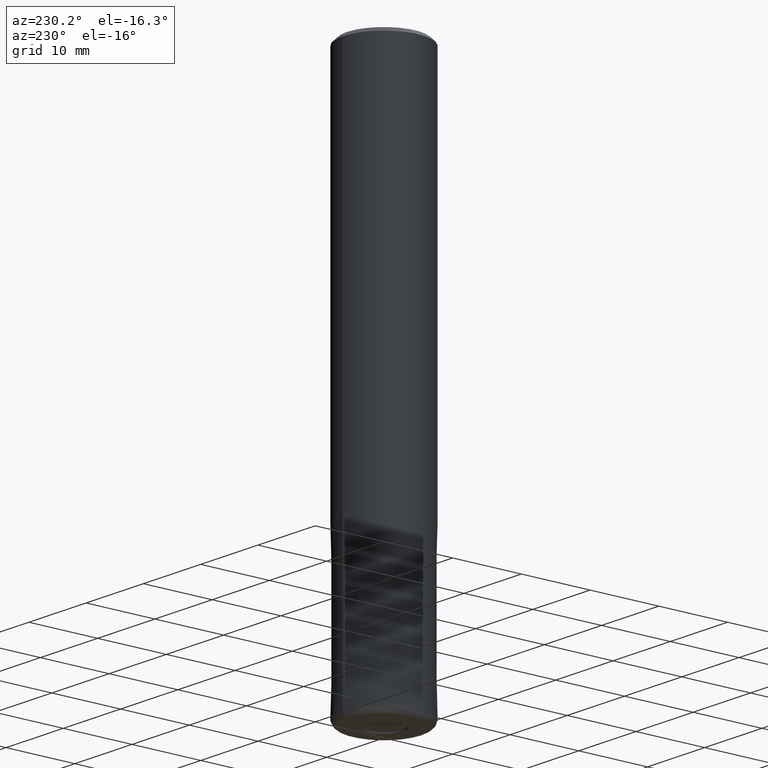
[diagram: clean part render]
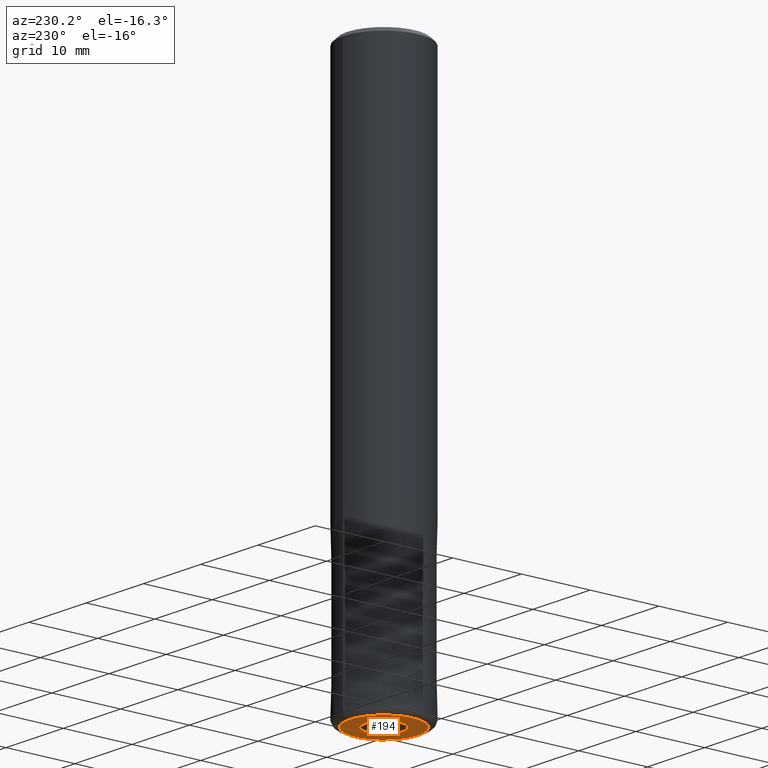
[diagram: same view with one face highlighted and labeled with its STEP entity id]
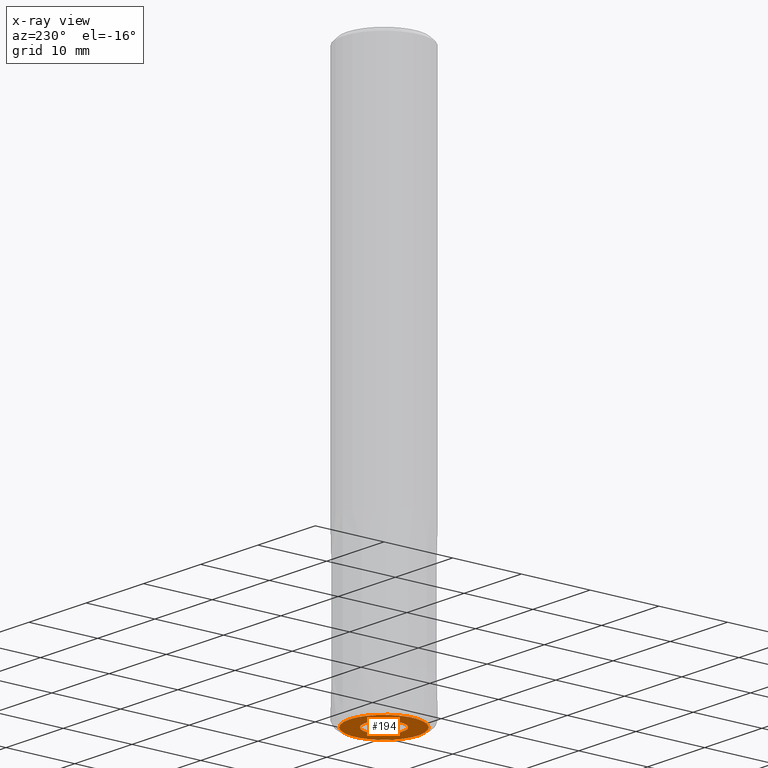
[diagram: x-ray of the same camera — body ghosted, the highlighted face saturated]
A machine part, auxiliary view. The second image highlights one B-rep face of the part: STEP entity #194.
The next image is the same camera in x-ray: the body ghosted, the highlighted face saturated — about 0% of this face is hidden behind the body in this view.
In plain terms, the highlighted planar face has unit normal (0, 0, -1).
Its self-contained STEP definition (entity closure, byte-faithful):
#122=VERTEX_POINT('',#287);
#128=VERTEX_POINT('',#293);
#170=EDGE_CURVE('',#218,#122,#340,.T.);
#172=VERTEX_POINT('',#342);
#182=EDGE_CURVE('',#172,#128,#353,.T.);
#188=EDGE_CURVE('',#128,#172,#359,.T.);
#194=ADVANCED_FACE('',(#365,#366),#367,.T.);
#210=EDGE_CURVE('',#122,#218,#386,.T.);
#218=VERTEX_POINT('',#396);
#287=CARTESIAN_POINT('',(3.30643715532042E-016,-2.7,-80.0));
#293=CARTESIAN_POINT('',(0.0,5.0,-80.0));
#340=CIRCLE('',#532,2.7);
#342=CARTESIAN_POINT('',(6.12303176911189E-016,-5.0,-80.0));
#353=CIRCLE('',#546,5.0);
#359=CIRCLE('',#555,5.0);
#365=FACE_BOUND('',#565,.T.);
#366=FACE_OUTER_BOUND('',#566,.T.);
#367=PLANE('',#567);
#386=CIRCLE('',#591,2.7);
#396=CARTESIAN_POINT('',(0.0,2.7,-80.0));
#532=AXIS2_PLACEMENT_3D('',#744,#745,#746);
#546=AXIS2_PLACEMENT_3D('',#757,#758,#759);
#555=AXIS2_PLACEMENT_3D('',#766,#767,#768);
#565=EDGE_LOOP('',(#772,#773));
#566=EDGE_LOOP('',(#774,#775));
#567=AXIS2_PLACEMENT_3D('',#776,#777,#778);
#591=AXIS2_PLACEMENT_3D('',#810,#811,#812);
#744=CARTESIAN_POINT('',(0.0,0.0,-80.0));
#745=DIRECTION('',(0.0,0.0,-1.0));
#746=DIRECTION('',(0.0,1.0,0.0));
#757=CARTESIAN_POINT('',(0.0,0.0,-80.0));
#758=DIRECTION('',(0.0,0.0,-1.0));
#759=DIRECTION('',(0.0,1.0,0.0));
#766=CARTESIAN_POINT('',(0.0,0.0,-80.0));
#767=DIRECTION('',(0.0,0.0,-1.0));
#768=DIRECTION('',(0.0,1.0,0.0));
#772=ORIENTED_EDGE('',*,*,#170,.F.);
#773=ORIENTED_EDGE('',*,*,#210,.F.);
#774=ORIENTED_EDGE('',*,*,#188,.T.);
#775=ORIENTED_EDGE('',*,*,#182,.T.);
#776=CARTESIAN_POINT('',(0.0,3.85,-80.0));
#777=DIRECTION('',(0.0,0.0,-1.0));
#778=DIRECTION('',(0.0,1.0,0.0));
#810=CARTESIAN_POINT('',(0.0,0.0,-80.0));
#811=DIRECTION('',(0.0,0.0,-1.0));
#812=DIRECTION('',(0.0,1.0,0.0));